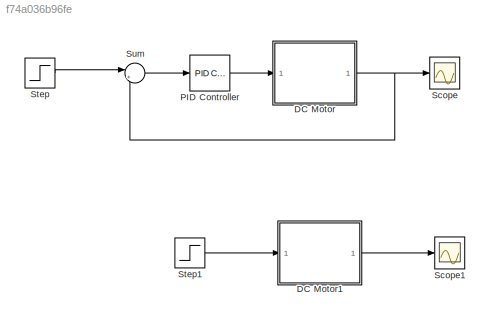
MODEL slx_f74a036b96fe
KIND model
CONFIG AbsTol = auto
CONFIG EnableMultiTasking = off
CONFIG FixedStep = auto
CONFIG MaxStep = auto
CONFIG MinStep = auto
CONFIG RelTol = 1e-3
CONFIG SampleTimeConstraint = Unconstrained
CONFIG SolverName = VariableStepAuto
CONFIG StartTime = 0.0
CONFIG StopTime = 0.2
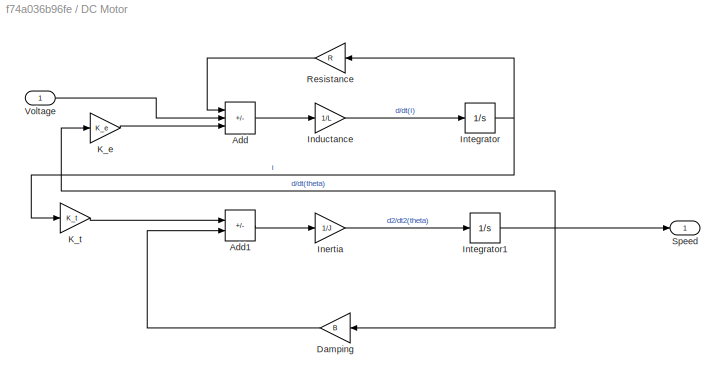
BLOCK [SubSystem] DC Motor
BLOCK [Sum] DC Motor/Add
  IconShape = rectangular
  Inputs = -+-
BLOCK [Sum] DC Motor/Add1
  IconShape = rectangular
  Inputs = +-
BLOCK [Gain] DC Motor/Damping
  Gain = B
BLOCK [Gain] DC Motor/Inductance
  Gain = 1/L
BLOCK [Gain] DC Motor/Inertia
  Gain = 1/J
BLOCK [Integrator] DC Motor/Integrator
BLOCK [Integrator] DC Motor/Integrator1
BLOCK [Gain] DC Motor/K_e
  Gain = K_e
BLOCK [Gain] DC Motor/K_t
  Gain = K_t
BLOCK [Gain] DC Motor/Resistance
  Gain = R
BLOCK [Outport] DC Motor/Speed
BLOCK [Inport] DC Motor/Voltage
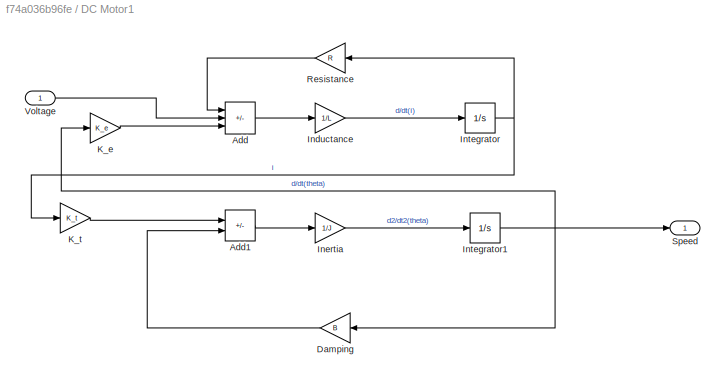
BLOCK [SubSystem] DC Motor1
BLOCK [Sum] DC Motor1/Add
  IconShape = rectangular
  Inputs = -+-
BLOCK [Sum] DC Motor1/Add1
  IconShape = rectangular
  Inputs = +-
BLOCK [Gain] DC Motor1/Damping
  Gain = B
BLOCK [Gain] DC Motor1/Inductance
  Gain = 1/L
BLOCK [Gain] DC Motor1/Inertia
  Gain = 1/J
BLOCK [Integrator] DC Motor1/Integrator
BLOCK [Integrator] DC Motor1/Integrator1
BLOCK [Gain] DC Motor1/K_e
  Gain = K_e
BLOCK [Gain] DC Motor1/K_t
  Gain = K_t
BLOCK [Gain] DC Motor1/Resistance
  Gain = R
BLOCK [Outport] DC Motor1/Speed
BLOCK [Inport] DC Motor1/Voltage
BLOCK [Reference] PID Controller  REF=slpidlib/PID Controller
  LibrarySourceBlock = simulink/Continuous/PID Controller
  SourceBlock = slpidlib/PID Controller
  SourceType = PID 1dof
BLOCK [Scope] Scope
  Floating = off
  NumInputPorts = 1
  ScopeSpecificationString = Simulink.scopes.TimeScopeBlockCfg('CurrentConfiguration', extmgr.ConfigurationSet(extmgr.Configuration('Core','General UI',true),extmgr.Configuration('Core','Source UI',true),extmgr.Configuration('Sources','WiredSimulink',true),extmgr.Configuration('Visuals','Time Domain',true,'SerializedDisplays',{struct('MinYLimReal','-0.13476','MaxYLimReal','1.21285','YLabelReal','','MinYLimMag','0.00000','MaxY...<+1328ch>
BLOCK [Scope] Scope1
  Floating = off
  NumInputPorts = 1
  ScopeSpecificationString = Simulink.scopes.TimeScopeBlockCfg('CurrentConfiguration', extmgr.ConfigurationSet(extmgr.Configuration('Core','General UI',true),extmgr.Configuration('Core','Source UI',true),extmgr.Configuration('Sources','WiredSimulink',true,'DataLoggingVariableName','ScopeData1'),extmgr.Configuration('Visuals','Time Domain',true,'SerializedDisplays',{struct('MinYLimReal','-0.13476','MaxYLimReal','1.21285','YLab...<+1367ch>
BLOCK [Step] Step
  SampleTime = 0
BLOCK [Step] Step1
  SampleTime = 0
  Time = 0
BLOCK [Sum] Sum
  Inputs = |+-
LINE DC Motor/Add1:1 -> DC Motor/Inertia:1
LINE DC Motor/Add:1 -> DC Motor/Inductance:1
LINE DC Motor/Damping:1 -> DC Motor/Add1:2
LINE DC Motor/Inductance:1 -> DC Motor/Integrator:1
LINE DC Motor/Inertia:1 -> DC Motor/Integrator1:1
NET DC Motor/Integrator1:1 -> DC Motor/Damping:1, DC Motor/K_e:1, DC Motor/Speed:1
NET DC Motor/Integrator:1 -> DC Motor/K_t:1, DC Motor/Resistance:1
LINE DC Motor/K_e:1 -> DC Motor/Add:3
LINE DC Motor/K_t:1 -> DC Motor/Add1:1
LINE DC Motor/Resistance:1 -> DC Motor/Add:1
LINE DC Motor/Voltage:1 -> DC Motor/Add:2
LINE DC Motor1/Add1:1 -> DC Motor1/Inertia:1
LINE DC Motor1/Add:1 -> DC Motor1/Inductance:1
LINE DC Motor1/Damping:1 -> DC Motor1/Add1:2
LINE DC Motor1/Inductance:1 -> DC Motor1/Integrator:1
LINE DC Motor1/Inertia:1 -> DC Motor1/Integrator1:1
NET DC Motor1/Integrator1:1 -> DC Motor1/Damping:1, DC Motor1/K_e:1, DC Motor1/Speed:1
NET DC Motor1/Integrator:1 -> DC Motor1/K_t:1, DC Motor1/Resistance:1
LINE DC Motor1/K_e:1 -> DC Motor1/Add:3
LINE DC Motor1/K_t:1 -> DC Motor1/Add1:1
LINE DC Motor1/Resistance:1 -> DC Motor1/Add:1
LINE DC Motor1/Voltage:1 -> DC Motor1/Add:2
LINE DC Motor1:1 -> Scope1:1
NET DC Motor:1 -> Scope:1, Sum:2
LINE PID Controller:1 -> DC Motor:1
LINE Step1:1 -> DC Motor1:1
LINE Step:1 -> Sum:1
LINE Sum:1 -> PID Controller:1
note: NET lines group one-source signal fan-out (src -> all destinations, sorted); 1:1 wires keep LINE
